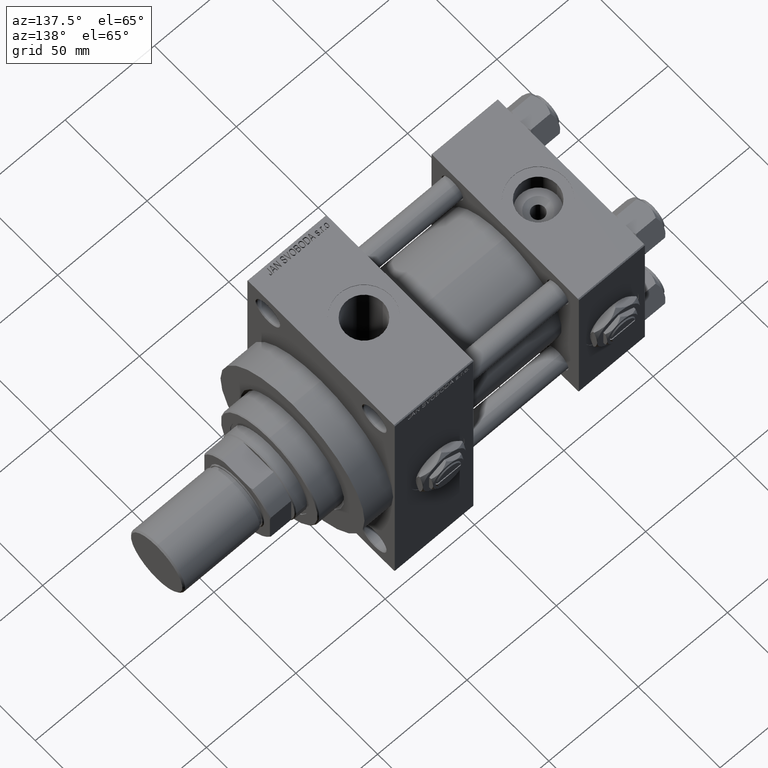
[diagram: clean part render]
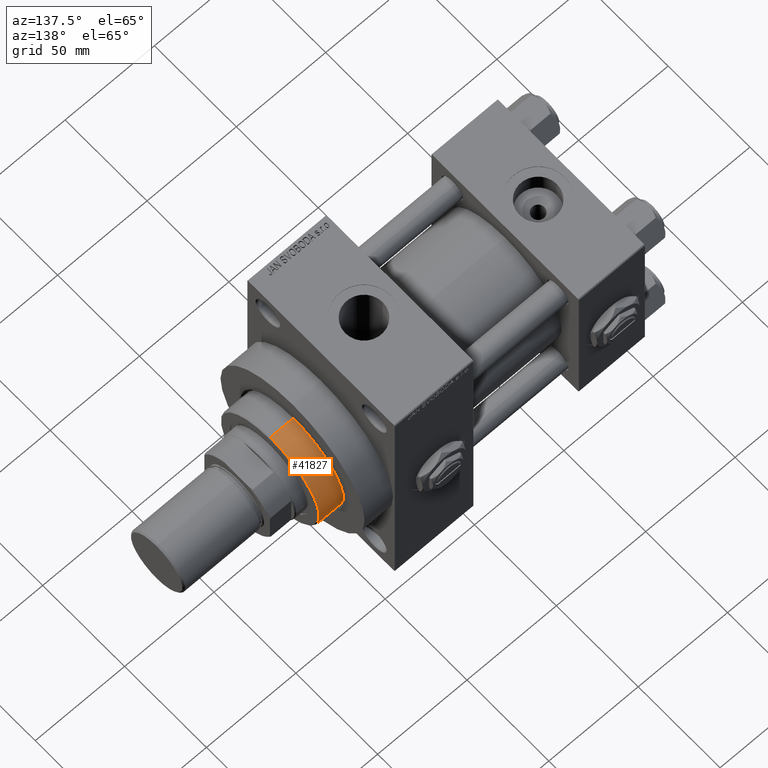
[diagram: same view with one face highlighted and labeled with its STEP entity id]
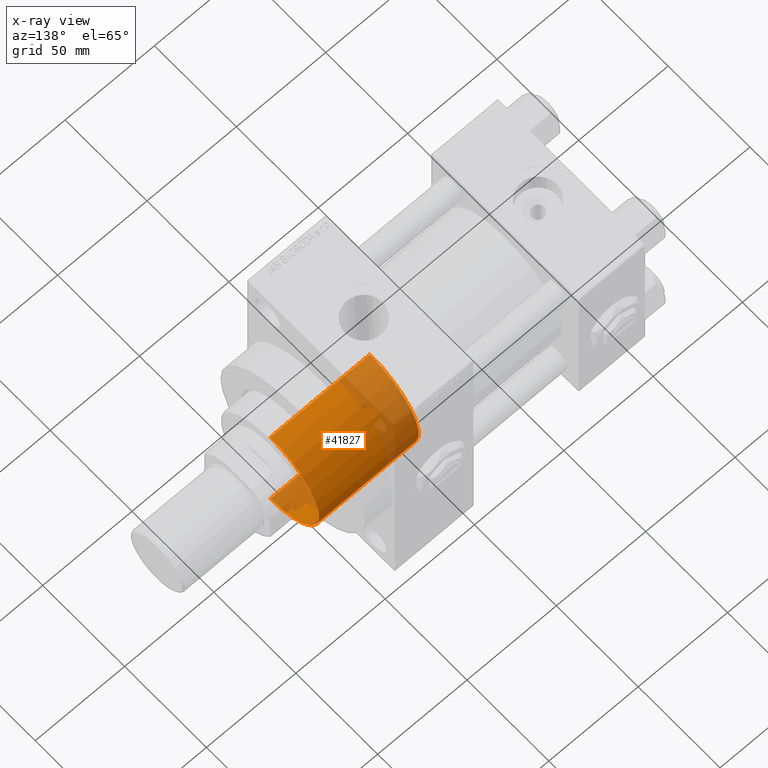
[diagram: x-ray of the same camera — body ghosted, the highlighted face saturated]
A machine part, auxiliary view. The second image highlights one B-rep face of the part: STEP entity #41827.
The next image is the same camera in x-ray: the body ghosted, the highlighted face saturated — about 34% of this face is hidden behind the body in this view.
In plain terms, the highlighted cylindrical surface (partial cylindrical patch) has radius 30 mm, axis along (-1, 0, 0).
Its self-contained STEP definition (entity closure, byte-faithful):
#3852 = CARTESIAN_POINT ( 'NONE',  ( -30.00000000000000000, 0.000000000000000000, 55.75999999999999801 ) ) ;
#5750 = EDGE_CURVE ( 'NONE', #14579, #40217, #13330, .T. ) ;
#9430 = DIRECTION ( 'NONE',  ( -0.000000000000000000, -0.000000000000000000, -1.000000000000000000 ) ) ;
#10088 = EDGE_CURVE ( 'NONE', #34189, #14579, #43089, .T. ) ;
#12632 = DIRECTION ( 'NONE',  ( -0.000000000000000000, -0.000000000000000000, -1.000000000000000000 ) ) ;
#12699 = CARTESIAN_POINT ( 'NONE',  ( -30.00000000000000000, 0.000000000000000000, 43.25999999999999801 ) ) ;
#13330 = CIRCLE ( 'NONE', #41400, 30.00000000000000000 ) ;
#14579 = VERTEX_POINT ( 'NONE', #37269 ) ;
#15665 = FACE_OUTER_BOUND ( 'NONE', #32904, .T. ) ;
#17092 = DIRECTION ( 'NONE',  ( 0.000000000000000000, 0.000000000000000000, 1.000000000000000000 ) ) ;
#19025 = ORIENTED_EDGE ( 'NONE', *, *, #5750, .T. ) ;
#19190 = DIRECTION ( 'NONE',  ( -0.000000000000000000, -0.000000000000000000, -1.000000000000000000 ) ) ;
#20566 = VECTOR ( 'NONE', #9430, 1000.000000000000000 ) ;
#24225 = CARTESIAN_POINT ( 'NONE',  ( 30.00000000000000000, 3.673940397442059178E-15, 55.75999999999999801 ) ) ;
#26949 = DIRECTION ( 'NONE',  ( 0.000000000000000000, 0.000000000000000000, -1.000000000000000000 ) ) ;
#28343 = CIRCLE ( 'NONE', #45199, 30.00000000000000000 ) ;
#28694 = CARTESIAN_POINT ( 'NONE',  ( 30.00000000000000000, 3.673940397442059178E-15, 43.25999999999999801 ) ) ;
#29260 = VECTOR ( 'NONE', #12632, 1000.000000000000000 ) ;
#30704 = DIRECTION ( 'NONE',  ( 1.000000000000000000, 0.000000000000000000, 0.000000000000000000 ) ) ;
#32165 = VERTEX_POINT ( 'NONE', #24225 ) ;
#32406 = DIRECTION ( 'NONE',  ( 1.000000000000000000, 0.000000000000000000, 0.000000000000000000 ) ) ;
#32904 = EDGE_LOOP ( 'NONE', ( #38830, #36826, #45214, #19025 ) ) ;
#34189 = VERTEX_POINT ( 'NONE', #3852 ) ;
#34256 = DIRECTION ( 'NONE',  ( -1.000000000000000000, 0.000000000000000000, 0.000000000000000000 ) ) ;
#35465 = AXIS2_PLACEMENT_3D ( 'NONE', #49362, #19190, #34256 ) ;
#36228 = LINE ( 'NONE', #28694, #29260 ) ;
#36826 = ORIENTED_EDGE ( 'NONE', *, *, #44790, .T. ) ;
#37269 = CARTESIAN_POINT ( 'NONE',  ( -30.00000000000000000, 0.000000000000000000, 0.000000000000000000 ) ) ;
#38454 = CARTESIAN_POINT ( 'NONE',  ( 30.00000000000000000, 3.673940397442059178E-15, 0.000000000000000000 ) ) ;
#38535 = CYLINDRICAL_SURFACE ( 'NONE', #35465, 30.00000000000000000 ) ;
#38830 = ORIENTED_EDGE ( 'NONE', *, *, #48842, .F. ) ;
#39715 = CARTESIAN_POINT ( 'NONE',  ( 0.000000000000000000, 0.000000000000000000, 0.000000000000000000 ) ) ;
#40217 = VERTEX_POINT ( 'NONE', #38454 ) ;
#41279 = CARTESIAN_POINT ( 'NONE',  ( 0.000000000000000000, 0.000000000000000000, 55.75999999999999801 ) ) ;
#41400 = AXIS2_PLACEMENT_3D ( 'NONE', #39715, #17092, #32406 ) ;
#41827 = ADVANCED_FACE ( 'NONE', ( #15665 ), #38535, .T. ) ;
#43089 = LINE ( 'NONE', #12699, #20566 ) ;
#44790 = EDGE_CURVE ( 'NONE', #32165, #34189, #28343, .T. ) ;
#45199 = AXIS2_PLACEMENT_3D ( 'NONE', #41279, #26949, #30704 ) ;
#45214 = ORIENTED_EDGE ( 'NONE', *, *, #10088, .T. ) ;
#48842 = EDGE_CURVE ( 'NONE', #32165, #40217, #36228, .T. ) ;
#49362 = CARTESIAN_POINT ( 'NONE',  ( 0.000000000000000000, 0.000000000000000000, 43.25999999999999801 ) ) ;